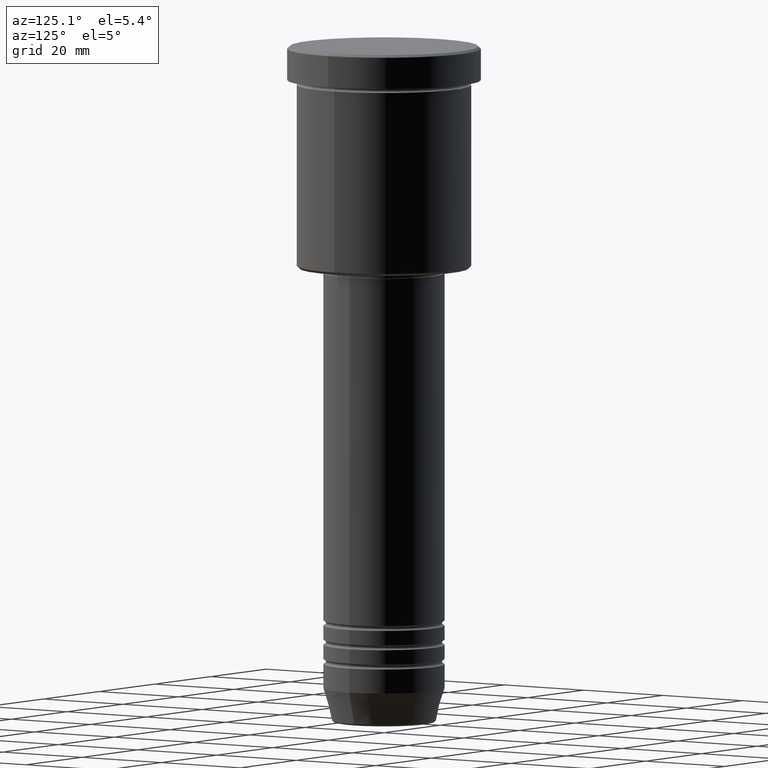
[diagram: clean part render]
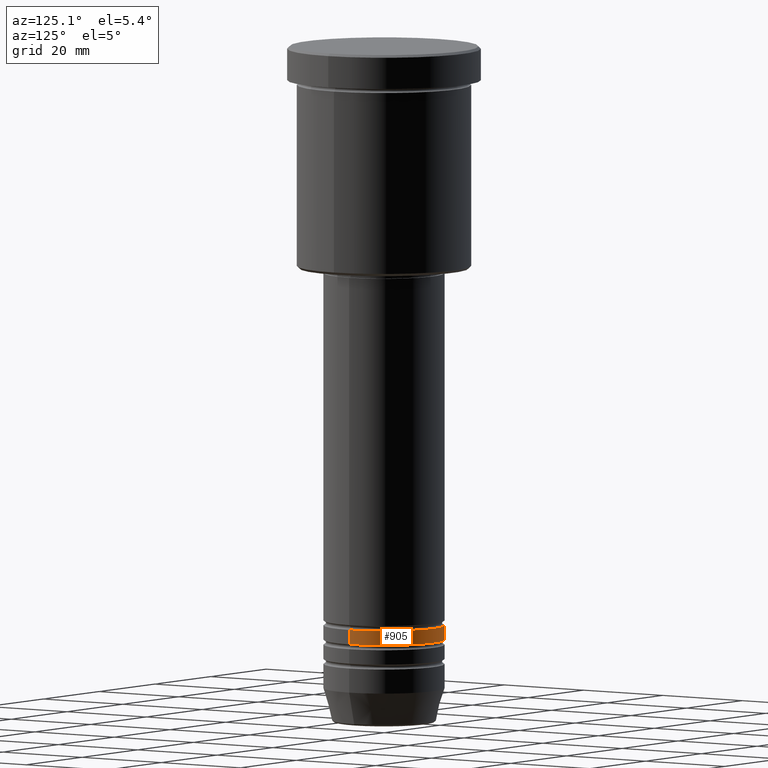
[diagram: same view with one face highlighted and labeled with its STEP entity id]
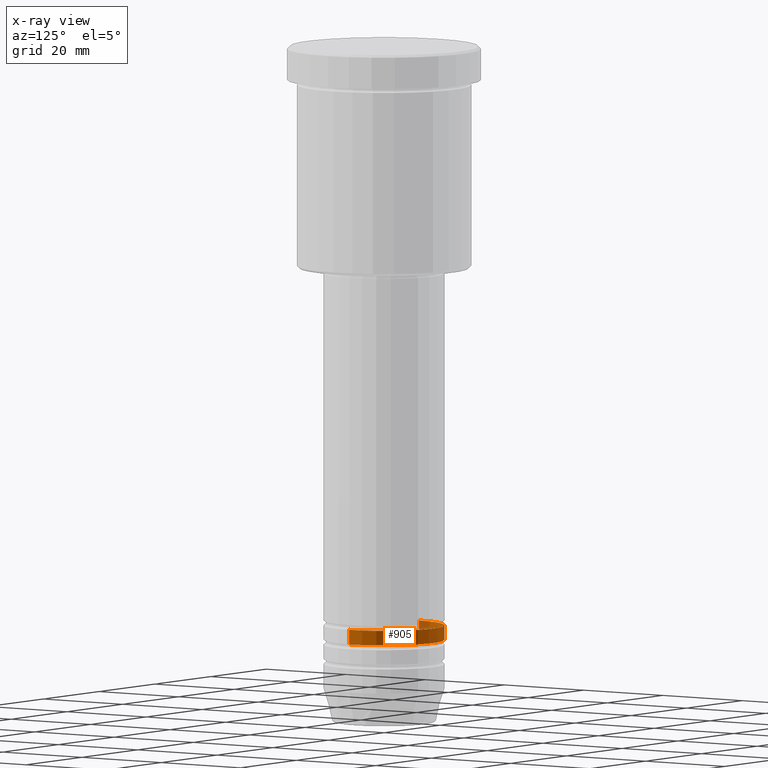
[diagram: x-ray of the same camera — body ghosted, the highlighted face saturated]
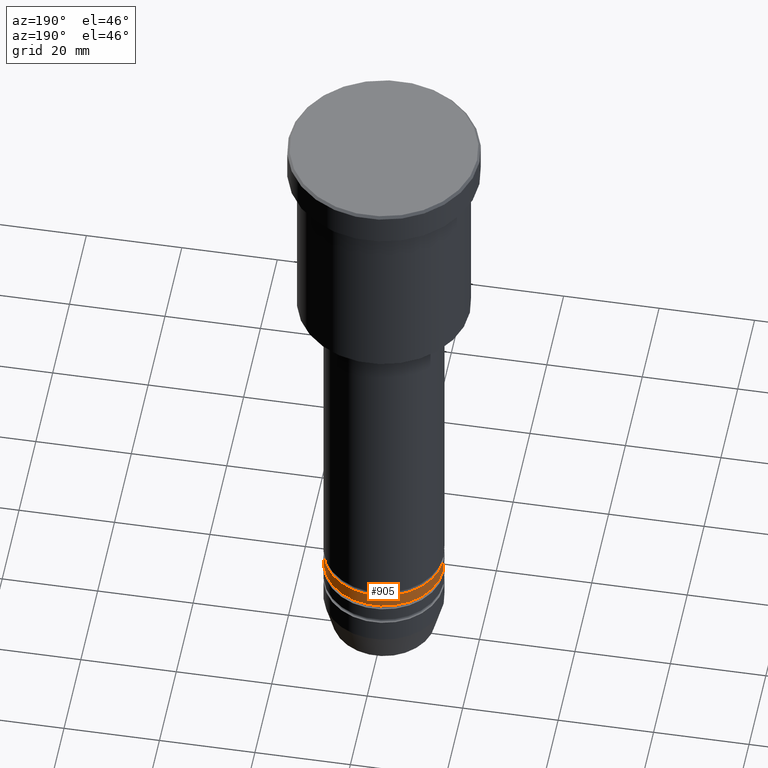
[diagram: same view with one face highlighted and labeled with its STEP entity id]
A machine part, auxiliary view. The second image highlights one B-rep face of the part: STEP entity #905.
The next image is the same camera in x-ray: the body ghosted, the highlighted face saturated — about 6% of this face is hidden behind the body in this view.
A second angle (auxiliary view) of the same face is appended — the face is thin or edge-on in the first view.
In plain terms, the highlighted cylindrical surface (partial cylindrical patch) has radius 12.5 mm, axis along (-0, -0, 1).
Its self-contained STEP definition (entity closure, byte-faithful):
#23 = CARTESIAN_POINT ( 'NONE',  ( 0.000000000000000000, 0.000000000000000000, 0.000000000000000000 ) ) ;
#40 = DIRECTION ( 'NONE',  ( -0.000000000000000000, -0.000000000000000000, 1.000000000000000000 ) ) ;
#41 = CYLINDRICAL_SURFACE ( 'NONE', #175, 12.50000000000000178 ) ;
#67 = VERTEX_POINT ( 'NONE', #910 ) ;
#112 = DIRECTION ( 'NONE',  ( 1.000000000000000000, 0.000000000000000000, 0.000000000000000000 ) ) ;
#130 = CARTESIAN_POINT ( 'NONE',  ( 0.000000000000000000, 0.000000000000000000, -120.0000000000000000 ) ) ;
#142 = ORIENTED_EDGE ( 'NONE', *, *, #363, .F. ) ;
#175 = AXIS2_PLACEMENT_3D ( 'NONE', #23, #852, #203 ) ;
#203 = DIRECTION ( 'NONE',  ( 1.000000000000000000, 0.000000000000000000, 0.000000000000000000 ) ) ;
#257 = CARTESIAN_POINT ( 'NONE',  ( 12.50000000000000355, 0.000000000000000000, -123.0000000000000000 ) ) ;
#290 = DIRECTION ( 'NONE',  ( -0.000000000000000000, -0.000000000000000000, 1.000000000000000000 ) ) ;
#353 = VERTEX_POINT ( 'NONE', #718 ) ;
#362 = DIRECTION ( 'NONE',  ( -0.000000000000000000, -0.000000000000000000, 1.000000000000000000 ) ) ;
#363 = EDGE_CURVE ( 'NONE', #1088, #599, #501, .T. ) ;
#372 = CIRCLE ( 'NONE', #585, 12.50000000000000000 ) ;
#448 = EDGE_CURVE ( 'NONE', #67, #353, #653, .T. ) ;
#469 = AXIS2_PLACEMENT_3D ( 'NONE', #657, #362, #553 ) ;
#498 = ORIENTED_EDGE ( 'NONE', *, *, #619, .T. ) ;
#501 = LINE ( 'NONE', #612, #505 ) ;
#505 = VECTOR ( 'NONE', #40, 1000.000000000000000 ) ;
#553 = DIRECTION ( 'NONE',  ( 1.000000000000000000, 0.000000000000000000, 0.000000000000000000 ) ) ;
#585 = AXIS2_PLACEMENT_3D ( 'NONE', #130, #775, #112 ) ;
#599 = VERTEX_POINT ( 'NONE', #1103 ) ;
#612 = CARTESIAN_POINT ( 'NONE',  ( 12.50000000000000178, 0.000000000000000000, 0.000000000000000000 ) ) ;
#619 = EDGE_CURVE ( 'NONE', #1088, #67, #745, .T. ) ;
#625 = VECTOR ( 'NONE', #290, 1000.000000000000000 ) ;
#653 = LINE ( 'NONE', #1097, #625 ) ;
#657 = CARTESIAN_POINT ( 'NONE',  ( 0.000000000000000000, 0.000000000000000000, -123.0000000000000000 ) ) ;
#718 = CARTESIAN_POINT ( 'NONE',  ( -12.50000000000000000, 1.530808498934191719E-15, -120.0000000000000000 ) ) ;
#745 = CIRCLE ( 'NONE', #469, 12.50000000000000355 ) ;
#775 = DIRECTION ( 'NONE',  ( -0.000000000000000000, -0.000000000000000000, 1.000000000000000000 ) ) ;
#799 = EDGE_LOOP ( 'NONE', ( #498, #1014, #1102, #142 ) ) ;
#852 = DIRECTION ( 'NONE',  ( -0.000000000000000000, -0.000000000000000000, 1.000000000000000000 ) ) ;
#874 = FACE_OUTER_BOUND ( 'NONE', #799, .T. ) ;
#887 = EDGE_CURVE ( 'NONE', #599, #353, #372, .T. ) ;
#905 = ADVANCED_FACE ( 'NONE', ( #874 ), #41, .T. ) ;
#910 = CARTESIAN_POINT ( 'NONE',  ( -12.50000000000000533, 1.530808498934192113E-15, -123.0000000000000000 ) ) ;
#1014 = ORIENTED_EDGE ( 'NONE', *, *, #448, .T. ) ;
#1088 = VERTEX_POINT ( 'NONE', #257 ) ;
#1097 = CARTESIAN_POINT ( 'NONE',  ( -12.50000000000000178, 1.530808498934191719E-15, 0.000000000000000000 ) ) ;
#1102 = ORIENTED_EDGE ( 'NONE', *, *, #887, .F. ) ;
#1103 = CARTESIAN_POINT ( 'NONE',  ( 12.50000000000000000, 0.000000000000000000, -120.0000000000000000 ) ) ;